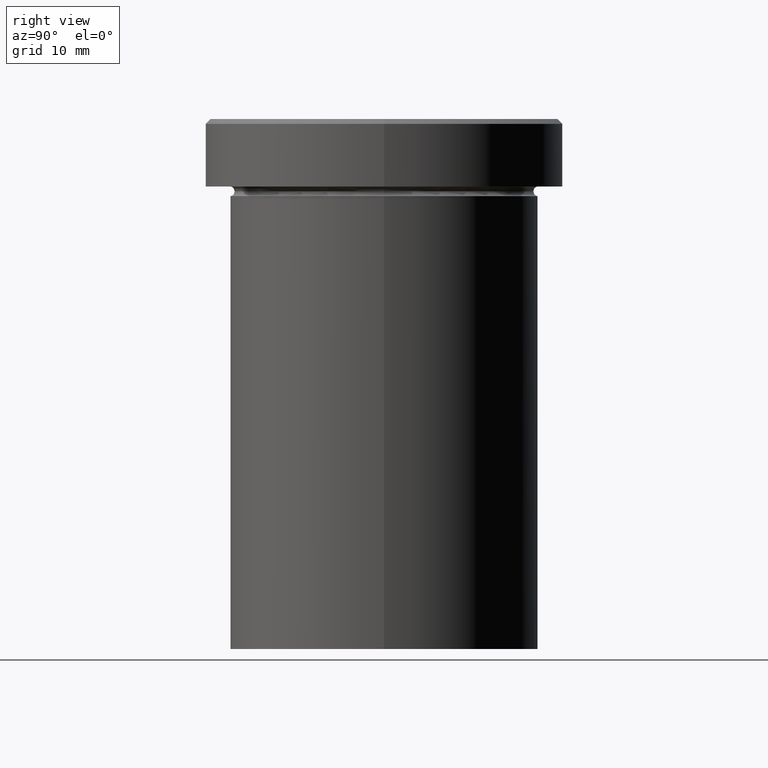
[diagram: clean part render]
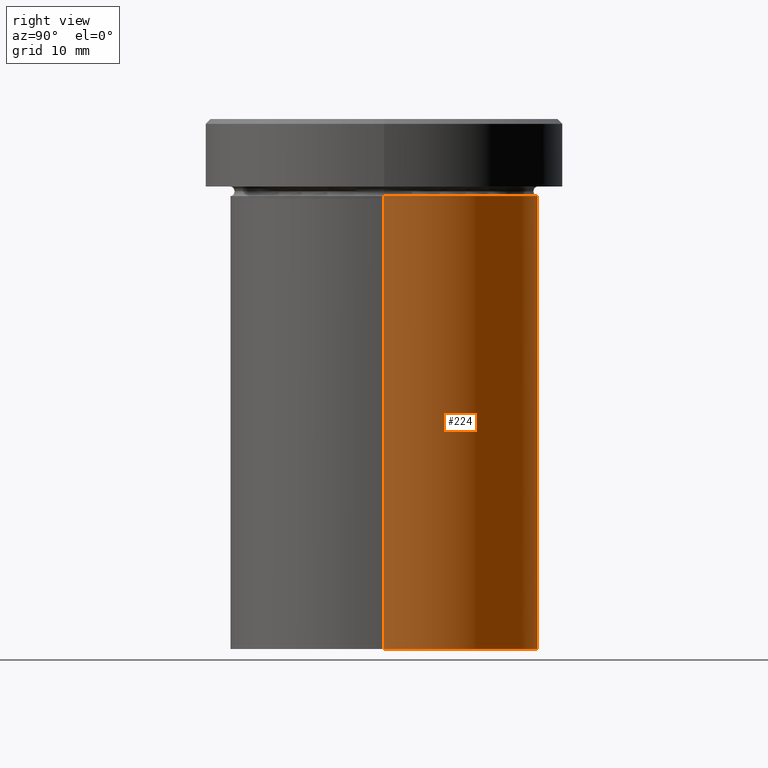
[diagram: same view with one face highlighted and labeled with its STEP entity id]
A machine part, right view. The second image highlights one B-rep face of the part: STEP entity #224.
In plain terms, the highlighted cylindrical surface (partial cylindrical patch) has radius 16 mm, axis along (-0, -0, 1).
Its self-contained STEP definition (entity closure, byte-faithful):
#11 = EDGE_CURVE ( 'NONE', #120, #329, #87, .T. ) ;
#12 = EDGE_CURVE ( 'NONE', #120, #148, #29, .T. ) ;
#22 = ORIENTED_EDGE ( 'NONE', *, *, #11, .T. ) ;
#29 = LINE ( 'NONE', #382, #145 ) ;
#34 = AXIS2_PLACEMENT_3D ( 'NONE', #301, #397, #373 ) ;
#37 = DIRECTION ( 'NONE',  ( 1.000000000000000000, 0.000000000000000000, 0.000000000000000000 ) ) ;
#41 = DIRECTION ( 'NONE',  ( -0.000000000000000000, -0.000000000000000000, 1.000000000000000000 ) ) ;
#42 = AXIS2_PLACEMENT_3D ( 'NONE', #290, #70, #65 ) ;
#65 = DIRECTION ( 'NONE',  ( 1.000000000000000000, 0.000000000000000000, 0.000000000000000000 ) ) ;
#66 = DIRECTION ( 'NONE',  ( -0.000000000000000000, -0.000000000000000000, 1.000000000000000000 ) ) ;
#70 = DIRECTION ( 'NONE',  ( -0.000000000000000000, -0.000000000000000000, 1.000000000000000000 ) ) ;
#87 = CIRCLE ( 'NONE', #222, 16.00000000000000000 ) ;
#96 = CARTESIAN_POINT ( 'NONE',  ( 0.000000000000000000, 0.000000000000000000, -54.99999999999999289 ) ) ;
#98 = ORIENTED_EDGE ( 'NONE', *, *, #135, .T. ) ;
#100 = DIRECTION ( 'NONE',  ( -0.000000000000000000, -0.000000000000000000, 1.000000000000000000 ) ) ;
#120 = VERTEX_POINT ( 'NONE', #355 ) ;
#135 = EDGE_CURVE ( 'NONE', #329, #248, #323, .T. ) ;
#142 = CARTESIAN_POINT ( 'NONE',  ( -16.00000000000000000, 1.959434878635765131E-15, -8.000000000000000000 ) ) ;
#143 = FACE_OUTER_BOUND ( 'NONE', #220, .T. ) ;
#145 = VECTOR ( 'NONE', #100, 1000.000000000000000 ) ;
#148 = VERTEX_POINT ( 'NONE', #259 ) ;
#175 = CYLINDRICAL_SURFACE ( 'NONE', #34, 16.00000000000000000 ) ;
#195 = CARTESIAN_POINT ( 'NONE',  ( -16.00000000000000000, 1.959434878635765131E-15, 0.000000000000000000 ) ) ;
#208 = ORIENTED_EDGE ( 'NONE', *, *, #348, .F. ) ;
#220 = EDGE_LOOP ( 'NONE', ( #22, #98, #208, #367 ) ) ;
#222 = AXIS2_PLACEMENT_3D ( 'NONE', #96, #66, #37 ) ;
#224 = ADVANCED_FACE ( 'NONE', ( #143 ), #175, .T. ) ;
#236 = CARTESIAN_POINT ( 'NONE',  ( -16.00000000000000000, 1.959434878635765131E-15, -54.99999999999999289 ) ) ;
#248 = VERTEX_POINT ( 'NONE', #142 ) ;
#259 = CARTESIAN_POINT ( 'NONE',  ( 16.00000000000000000, 0.000000000000000000, -8.000000000000000000 ) ) ;
#290 = CARTESIAN_POINT ( 'NONE',  ( 0.000000000000000000, 0.000000000000000000, -8.000000000000000000 ) ) ;
#301 = CARTESIAN_POINT ( 'NONE',  ( 0.000000000000000000, 0.000000000000000000, 0.000000000000000000 ) ) ;
#323 = LINE ( 'NONE', #195, #343 ) ;
#329 = VERTEX_POINT ( 'NONE', #236 ) ;
#343 = VECTOR ( 'NONE', #41, 1000.000000000000000 ) ;
#348 = EDGE_CURVE ( 'NONE', #148, #248, #404, .T. ) ;
#355 = CARTESIAN_POINT ( 'NONE',  ( 16.00000000000000000, 0.000000000000000000, -54.99999999999999289 ) ) ;
#367 = ORIENTED_EDGE ( 'NONE', *, *, #12, .F. ) ;
#373 = DIRECTION ( 'NONE',  ( 1.000000000000000000, 0.000000000000000000, 0.000000000000000000 ) ) ;
#382 = CARTESIAN_POINT ( 'NONE',  ( 16.00000000000000000, 0.000000000000000000, 0.000000000000000000 ) ) ;
#397 = DIRECTION ( 'NONE',  ( -0.000000000000000000, -0.000000000000000000, 1.000000000000000000 ) ) ;
#404 = CIRCLE ( 'NONE', #42, 16.00000000000000000 ) ;